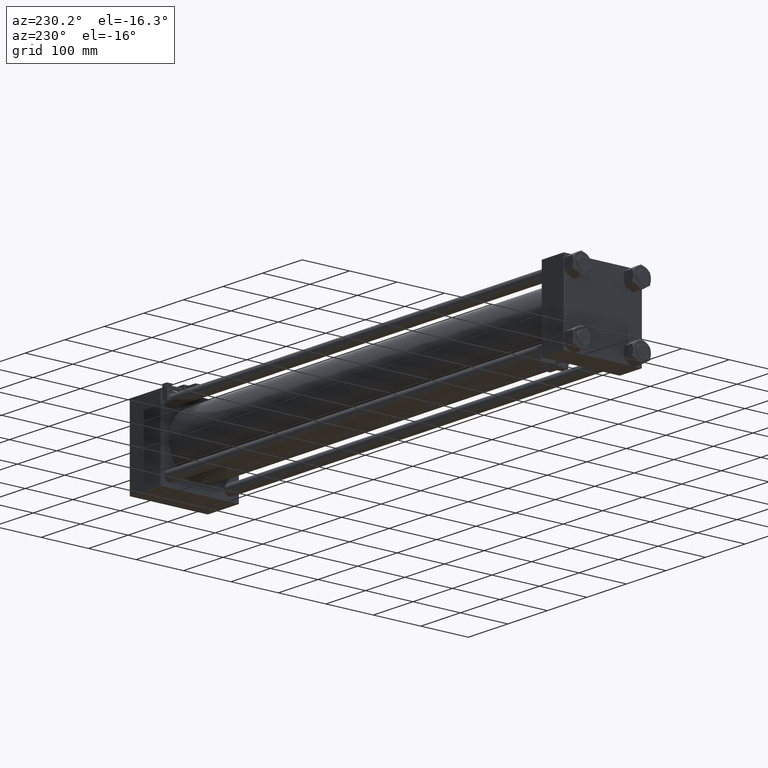
[diagram: clean part render]
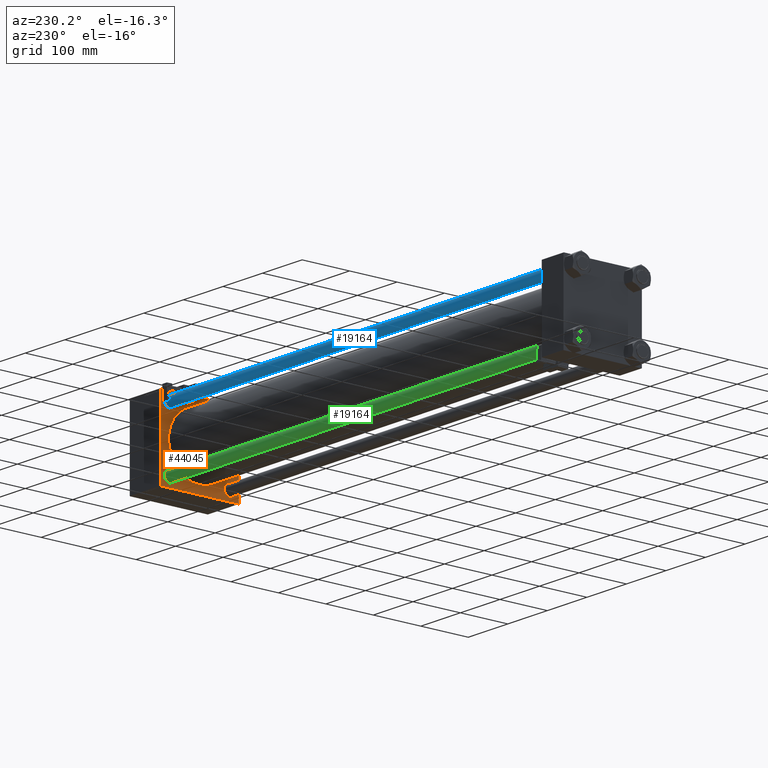
[diagram: same view with three faces highlighted in distinct colors, each labeled with its STEP entity id]
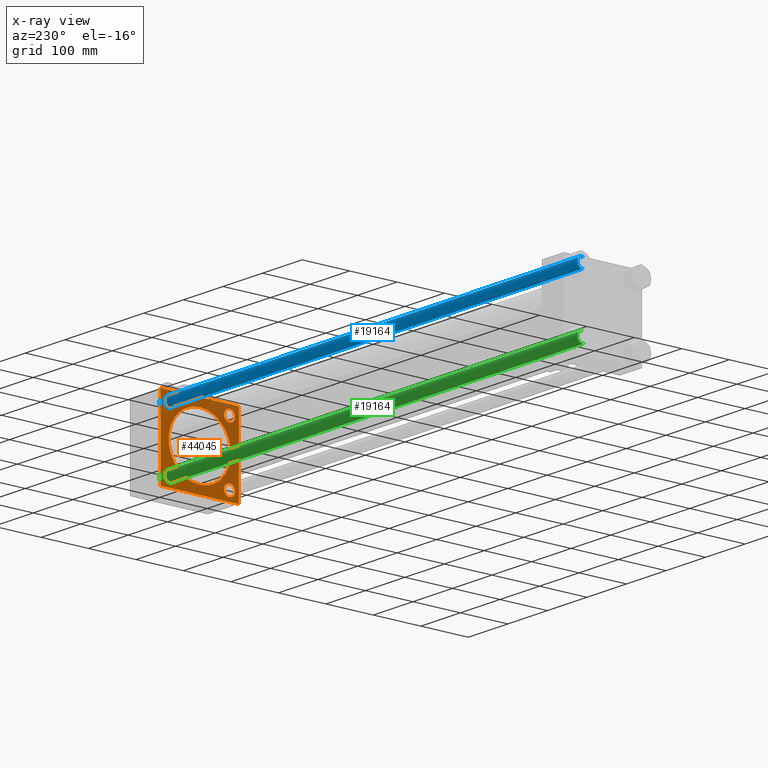
[diagram: x-ray of the same camera — body ghosted, the three highlighted faces saturated]
A machine part, auxiliary view with three faces highlighted in distinct colors.
The next image is the same camera in x-ray (body ghosted, the three faces saturated) — at least one of them is partly hidden behind the body in this view.
Their STEP definitions:

[orange] entity #44045 — the highlighted planar face has unit normal (-1, 0, 0).
#139 = CIRCLE ( 'NONE', #50592, 11.49999999999999645 ) ;
#295 = CARTESIAN_POINT ( 'NONE',  ( 1018.999999999999886, -82.49999999999997158, 81.99999999999991473 ) ) ;
#342 = PLANE ( 'NONE',  #44370 ) ;
#863 = DIRECTION ( 'NONE',  ( -1.000000000000000000, -0.000000000000000000, 0.000000000000000000 ) ) ;
#1254 = DIRECTION ( 'NONE',  ( 0.000000000000000000, 0.000000000000000000, -1.000000000000000000 ) ) ;
#2020 = VECTOR ( 'NONE', #50984, 1000.000000000000114 ) ;
#3006 = VERTEX_POINT ( 'NONE', #40238 ) ;
#3239 = EDGE_CURVE ( 'NONE', #42592, #21904, #24904, .T. ) ;
#3892 = CARTESIAN_POINT ( 'NONE',  ( 1018.999999999999886, 82.00000000000018474, -82.50000000000002842 ) ) ;
#4282 = CARTESIAN_POINT ( 'NONE',  ( 1018.999999999999886, -82.50000000000000000, -82.00000000000019895 ) ) ;
#4360 = EDGE_CURVE ( 'NONE', #17559, #33117, #139, .T. ) ;
#4467 = AXIS2_PLACEMENT_3D ( 'NONE', #18557, #35951, #15615 ) ;
#4563 = CARTESIAN_POINT ( 'NONE',  ( 1018.999999999999886, -2.602085213965210642E-15, 65.50000000000001421 ) ) ;
#4585 = VERTEX_POINT ( 'NONE', #46076 ) ;
#5184 = LINE ( 'NONE', #29023, #42066 ) ;
#5206 = CARTESIAN_POINT ( 'NONE',  ( 1018.999999999999886, 82.50000000000001421, -82.00000000000019895 ) ) ;
#5229 = VECTOR ( 'NONE', #1254, 1000.000000000000000 ) ;
#5259 = EDGE_CURVE ( 'NONE', #45990, #44289, #5184, .T. ) ;
#5487 = ORIENTED_EDGE ( 'NONE', *, *, #40924, .T. ) ;
#5939 = ORIENTED_EDGE ( 'NONE', *, *, #25645, .T. ) ;
#6864 = ORIENTED_EDGE ( 'NONE', *, *, #49932, .F. ) ;
#7556 = VERTEX_POINT ( 'NONE', #33530 ) ;
#7942 = VERTEX_POINT ( 'NONE', #4282 ) ;
#8108 = FACE_BOUND ( 'NONE', #50079, .T. ) ;
#8379 = VERTEX_POINT ( 'NONE', #5206 ) ;
#8421 = VECTOR ( 'NONE', #27707, 1000.000000000000000 ) ;
#8579 = DIRECTION ( 'NONE',  ( 1.000000000000000000, 0.000000000000000000, 0.000000000000000000 ) ) ;
#8905 = EDGE_CURVE ( 'NONE', #22885, #24319, #37941, .T. ) ;
#8910 = DIRECTION ( 'NONE',  ( 0.000000000000000000, 0.000000000000000000, 1.000000000000000000 ) ) ;
#9421 = CARTESIAN_POINT ( 'NONE',  ( 1018.999999999999886, 62.95000000000000284, -62.95000000000000284 ) ) ;
#9916 = ORIENTED_EDGE ( 'NONE', *, *, #13489, .F. ) ;
#10229 = EDGE_CURVE ( 'NONE', #49482, #3006, #50018, .T. ) ;
#10746 = CARTESIAN_POINT ( 'NONE',  ( 1018.999999999999886, 62.95000000000000284, -62.95000000000000284 ) ) ;
#11054 = ORIENTED_EDGE ( 'NONE', *, *, #3239, .T. ) ;
#11360 = ORIENTED_EDGE ( 'NONE', *, *, #4360, .T. ) ;
#11382 = LINE ( 'NONE', #40264, #8421 ) ;
#11636 = ORIENTED_EDGE ( 'NONE', *, *, #19890, .T. ) ;
#12124 = CARTESIAN_POINT ( 'NONE',  ( 1018.999999999999886, -82.24999999999897682, -82.25000000000125056 ) ) ;
#12489 = DIRECTION ( 'NONE',  ( 0.000000000000000000, 0.000000000000000000, 1.000000000000000000 ) ) ;
#12789 = VERTEX_POINT ( 'NONE', #3892 ) ;
#13339 = DIRECTION ( 'NONE',  ( 1.000000000000000000, 0.000000000000000000, -0.000000000000000000 ) ) ;
#13489 = EDGE_CURVE ( 'NONE', #49482, #44289, #19929, .T. ) ;
#13593 = DIRECTION ( 'NONE',  ( 0.000000000000000000, 0.7071067811865474617, -0.7071067811865474617 ) ) ;
#13844 = CARTESIAN_POINT ( 'NONE',  ( 1018.999999999999886, -62.94999999999998153, -51.45000000000002416 ) ) ;
#13984 = ORIENTED_EDGE ( 'NONE', *, *, #49264, .T. ) ;
#14033 = CARTESIAN_POINT ( 'NONE',  ( 1018.999999999999886, 82.25000000000009948, -82.25000000000009948 ) ) ;
#15615 = DIRECTION ( 'NONE',  ( 0.000000000000000000, 0.000000000000000000, 1.000000000000000000 ) ) ;
#15865 = CARTESIAN_POINT ( 'NONE',  ( 1018.999999999999886, -62.94999999999998153, -62.95000000000001705 ) ) ;
#15921 = DIRECTION ( 'NONE',  ( 0.000000000000000000, -1.000000000000000000, -1.682156097916904081E-16 ) ) ;
#16237 = CIRCLE ( 'NONE', #37641, 11.50000000000001066 ) ;
#16524 = DIRECTION ( 'NONE',  ( 1.000000000000000000, 0.000000000000000000, -0.000000000000000000 ) ) ;
#16950 = VERTEX_POINT ( 'NONE', #40624 ) ;
#17051 = EDGE_CURVE ( 'NONE', #3006, #8379, #38192, .T. ) ;
#17196 = FACE_BOUND ( 'NONE', #36131, .T. ) ;
#17200 = CARTESIAN_POINT ( 'NONE',  ( 1018.999999999999886, 62.95000000000000284, 51.45000000000000995 ) ) ;
#17500 = CIRCLE ( 'NONE', #50876, 11.49999999999999645 ) ;
#17559 = VERTEX_POINT ( 'NONE', #30017 ) ;
#18341 = EDGE_CURVE ( 'NONE', #16950, #7942, #32457, .T. ) ;
#18557 = CARTESIAN_POINT ( 'NONE',  ( 1018.999999999999886, -62.94999999999998153, 62.95000000000001705 ) ) ;
#19345 = ORIENTED_EDGE ( 'NONE', *, *, #8905, .T. ) ;
#19407 = ORIENTED_EDGE ( 'NONE', *, *, #5259, .T. ) ;
#19657 = EDGE_CURVE ( 'NONE', #49703, #4585, #39529, .T. ) ;
#19836 = CIRCLE ( 'NONE', #21560, 11.49999999999999645 ) ;
#19890 = EDGE_CURVE ( 'NONE', #33117, #17559, #19836, .T. ) ;
#19929 = LINE ( 'NONE', #40805, #49095 ) ;
#20412 = FACE_BOUND ( 'NONE', #22191, .T. ) ;
#21410 = CARTESIAN_POINT ( 'NONE',  ( 1018.999999999999886, 62.95000000000000284, -74.45000000000000284 ) ) ;
#21560 = AXIS2_PLACEMENT_3D ( 'NONE', #43867, #16524, #24561 ) ;
#21904 = VERTEX_POINT ( 'NONE', #21410 ) ;
#21971 = CIRCLE ( 'NONE', #51913, 11.49999999999999645 ) ;
#22111 = ORIENTED_EDGE ( 'NONE', *, *, #30961, .T. ) ;
#22191 = EDGE_LOOP ( 'NONE', ( #22111, #19345 ) ) ;
#22871 = EDGE_CURVE ( 'NONE', #8379, #12789, #33856, .T. ) ;
#22885 = VERTEX_POINT ( 'NONE', #42159 ) ;
#24085 = VECTOR ( 'NONE', #48290, 1000.000000000000000 ) ;
#24319 = VERTEX_POINT ( 'NONE', #4563 ) ;
#24417 = CARTESIAN_POINT ( 'NONE',  ( 1018.999999999999886, 62.95000000000000284, -51.45000000000000995 ) ) ;
#24561 = DIRECTION ( 'NONE',  ( 0.000000000000000000, 0.000000000000000000, 1.000000000000000000 ) ) ;
#24904 = CIRCLE ( 'NONE', #47119, 11.49999999999999645 ) ;
#25178 = DIRECTION ( 'NONE',  ( 0.000000000000000000, 0.000000000000000000, -1.000000000000000000 ) ) ;
#25645 = EDGE_CURVE ( 'NONE', #7556, #38561, #17500, .T. ) ;
#26826 = EDGE_LOOP ( 'NONE', ( #5487, #50331, #6864, #19407, #9916, #38833, #29539, #51167 ) ) ;
#27373 = DIRECTION ( 'NONE',  ( 0.000000000000000000, 0.000000000000000000, 1.000000000000000000 ) ) ;
#27497 = VECTOR ( 'NONE', #47829, 1000.000000000000000 ) ;
#27707 = DIRECTION ( 'NONE',  ( 0.000000000000000000, -1.000000000000000000, 0.000000000000000000 ) ) ;
#27855 = AXIS2_PLACEMENT_3D ( 'NONE', #28258, #40584, #48873 ) ;
#27860 = DIRECTION ( 'NONE',  ( 1.000000000000000000, 0.000000000000000000, -0.000000000000000000 ) ) ;
#27887 = DIRECTION ( 'NONE',  ( 1.000000000000000000, 0.000000000000000000, -0.000000000000000000 ) ) ;
#28128 = CARTESIAN_POINT ( 'NONE',  ( 1018.999999999999886, -81.99999999999990052, 82.49999999999997158 ) ) ;
#28258 = CARTESIAN_POINT ( 'NONE',  ( 1018.999999999999886, -2.602085213965210642E-15, 0.000000000000000000 ) ) ;
#28978 = FACE_BOUND ( 'NONE', #46056, .T. ) ;
#29023 = CARTESIAN_POINT ( 'NONE',  ( 1018.999999999999886, -82.24999999999880629, 82.25000000000108002 ) ) ;
#29181 = CARTESIAN_POINT ( 'NONE',  ( 1018.999999999999886, -2.602085213965210642E-15, 0.000000000000000000 ) ) ;
#29539 = ORIENTED_EDGE ( 'NONE', *, *, #17051, .T. ) ;
#30017 = CARTESIAN_POINT ( 'NONE',  ( 1018.999999999999886, -62.94999999999998153, -74.45000000000001705 ) ) ;
#30961 = EDGE_CURVE ( 'NONE', #24319, #22885, #50952, .T. ) ;
#31114 = AXIS2_PLACEMENT_3D ( 'NONE', #29181, #8579, #25178 ) ;
#31204 = ORIENTED_EDGE ( 'NONE', *, *, #34119, .T. ) ;
#31504 = CARTESIAN_POINT ( 'NONE',  ( 1018.999999999999886, -82.49999999999997158, 82.49999999999997158 ) ) ;
#32457 = LINE ( 'NONE', #12124, #24085 ) ;
#32835 = CARTESIAN_POINT ( 'NONE',  ( 1018.999999999999886, 62.95000000000000284, 62.95000000000000284 ) ) ;
#33116 = CARTESIAN_POINT ( 'NONE',  ( 1018.999999999999886, 82.50000000000001421, 82.50000000000000000 ) ) ;
#33117 = VERTEX_POINT ( 'NONE', #13844 ) ;
#33128 = CARTESIAN_POINT ( 'NONE',  ( 1018.999999999999886, -62.94999999999998153, 51.45000000000000995 ) ) ;
#33432 = AXIS2_PLACEMENT_3D ( 'NONE', #10746, #27860, #36153 ) ;
#33530 = CARTESIAN_POINT ( 'NONE',  ( 1018.999999999999886, 62.95000000000000284, 74.45000000000000284 ) ) ;
#33856 = LINE ( 'NONE', #14033, #2020 ) ;
#34119 = EDGE_CURVE ( 'NONE', #38561, #7556, #21971, .T. ) ;
#34741 = CARTESIAN_POINT ( 'NONE',  ( 1018.999999999999886, -62.94999999999998153, 62.95000000000001705 ) ) ;
#34842 = DIRECTION ( 'NONE',  ( 0.000000000000000000, 0.000000000000000000, 1.000000000000000000 ) ) ;
#35951 = DIRECTION ( 'NONE',  ( 1.000000000000000000, 0.000000000000000000, -0.000000000000000000 ) ) ;
#36131 = EDGE_LOOP ( 'NONE', ( #5939, #31204 ) ) ;
#36153 = DIRECTION ( 'NONE',  ( 0.000000000000000000, 0.000000000000000000, 1.000000000000000000 ) ) ;
#36295 = VECTOR ( 'NONE', #13593, 1000.000000000000114 ) ;
#37009 = FACE_BOUND ( 'NONE', #52867, .T. ) ;
#37285 = CARTESIAN_POINT ( 'NONE',  ( 1018.999999999999886, 0.000000000000000000, 0.000000000000000000 ) ) ;
#37641 = AXIS2_PLACEMENT_3D ( 'NONE', #34741, #13339, #46257 ) ;
#37941 = CIRCLE ( 'NONE', #31114, 65.50000000000001421 ) ;
#38192 = LINE ( 'NONE', #33116, #5229 ) ;
#38561 = VERTEX_POINT ( 'NONE', #17200 ) ;
#38833 = ORIENTED_EDGE ( 'NONE', *, *, #10229, .T. ) ;
#38892 = ORIENTED_EDGE ( 'NONE', *, *, #46434, .T. ) ;
#39529 = CIRCLE ( 'NONE', #4467, 11.50000000000001066 ) ;
#40193 = CARTESIAN_POINT ( 'NONE',  ( 1018.999999999999886, 62.95000000000000284, 62.95000000000000284 ) ) ;
#40238 = CARTESIAN_POINT ( 'NONE',  ( 1018.999999999999886, 82.50000000000001421, 81.99999999999994316 ) ) ;
#40264 = CARTESIAN_POINT ( 'NONE',  ( 1018.999999999999886, 82.50000000000001421, -82.50000000000002842 ) ) ;
#40508 = FACE_OUTER_BOUND ( 'NONE', #26826, .T. ) ;
#40584 = DIRECTION ( 'NONE',  ( 1.000000000000000000, 0.000000000000000000, 0.000000000000000000 ) ) ;
#40624 = CARTESIAN_POINT ( 'NONE',  ( 1018.999999999999886, -82.00000000000015632, -82.50000000000002842 ) ) ;
#40805 = CARTESIAN_POINT ( 'NONE',  ( 1018.999999999999886, 82.50000000000001421, 82.50000000000000000 ) ) ;
#40924 = EDGE_CURVE ( 'NONE', #12789, #16950, #11382, .T. ) ;
#41752 = CARTESIAN_POINT ( 'NONE',  ( 1018.999999999999886, 81.99999999999995737, 82.50000000000000000 ) ) ;
#42066 = VECTOR ( 'NONE', #45888, 1000.000000000000114 ) ;
#42159 = CARTESIAN_POINT ( 'NONE',  ( 1018.999999999999886, 5.419351320449954973E-15, -65.50000000000001421 ) ) ;
#42592 = VERTEX_POINT ( 'NONE', #24417 ) ;
#43867 = CARTESIAN_POINT ( 'NONE',  ( 1018.999999999999886, -62.94999999999998153, -62.95000000000001705 ) ) ;
#44045 = ADVANCED_FACE ( 'NONE', ( #28978, #17196, #37009, #8108, #20412, #40508 ), #342, .T. ) ;
#44289 = VERTEX_POINT ( 'NONE', #28128 ) ;
#44370 = AXIS2_PLACEMENT_3D ( 'NONE', #37285, #863, #8910 ) ;
#45888 = DIRECTION ( 'NONE',  ( -0.000000000000000000, 0.7071067811865573427, 0.7071067811865376918 ) ) ;
#45990 = VERTEX_POINT ( 'NONE', #295 ) ;
#46056 = EDGE_LOOP ( 'NONE', ( #38892, #52850 ) ) ;
#46076 = CARTESIAN_POINT ( 'NONE',  ( 1018.999999999999886, -62.94999999999998153, 74.45000000000003126 ) ) ;
#46257 = DIRECTION ( 'NONE',  ( 0.000000000000000000, 0.000000000000000000, 1.000000000000000000 ) ) ;
#46434 = EDGE_CURVE ( 'NONE', #4585, #49703, #16237, .T. ) ;
#46788 = CARTESIAN_POINT ( 'NONE',  ( 1018.999999999999886, 82.24999999999997158, 82.24999999999997158 ) ) ;
#47119 = AXIS2_PLACEMENT_3D ( 'NONE', #9421, #50384, #34842 ) ;
#47829 = DIRECTION ( 'NONE',  ( 0.000000000000000000, -1.682156097916903834E-16, -1.000000000000000000 ) ) ;
#48290 = DIRECTION ( 'NONE',  ( 0.000000000000000000, -0.7071067811865573427, 0.7071067811865378028 ) ) ;
#48873 = DIRECTION ( 'NONE',  ( 0.000000000000000000, 0.000000000000000000, -1.000000000000000000 ) ) ;
#49095 = VECTOR ( 'NONE', #15921, 1000.000000000000000 ) ;
#49170 = DIRECTION ( 'NONE',  ( 1.000000000000000000, 0.000000000000000000, -0.000000000000000000 ) ) ;
#49264 = EDGE_CURVE ( 'NONE', #21904, #42592, #49687, .T. ) ;
#49482 = VERTEX_POINT ( 'NONE', #41752 ) ;
#49687 = CIRCLE ( 'NONE', #33432, 11.49999999999999645 ) ;
#49703 = VERTEX_POINT ( 'NONE', #33128 ) ;
#49932 = EDGE_CURVE ( 'NONE', #45990, #7942, #51859, .T. ) ;
#50018 = LINE ( 'NONE', #46788, #36295 ) ;
#50079 = EDGE_LOOP ( 'NONE', ( #11636, #11360 ) ) ;
#50331 = ORIENTED_EDGE ( 'NONE', *, *, #18341, .T. ) ;
#50384 = DIRECTION ( 'NONE',  ( 1.000000000000000000, 0.000000000000000000, -0.000000000000000000 ) ) ;
#50592 = AXIS2_PLACEMENT_3D ( 'NONE', #15865, #51771, #52282 ) ;
#50876 = AXIS2_PLACEMENT_3D ( 'NONE', #32835, #49170, #12489 ) ;
#50952 = CIRCLE ( 'NONE', #27855, 65.50000000000001421 ) ;
#50984 = DIRECTION ( 'NONE',  ( -0.000000000000000000, -0.7071067811865474617, -0.7071067811865474617 ) ) ;
#51167 = ORIENTED_EDGE ( 'NONE', *, *, #22871, .T. ) ;
#51771 = DIRECTION ( 'NONE',  ( 1.000000000000000000, 0.000000000000000000, -0.000000000000000000 ) ) ;
#51859 = LINE ( 'NONE', #31504, #27497 ) ;
#51913 = AXIS2_PLACEMENT_3D ( 'NONE', #40193, #27887, #27373 ) ;
#52282 = DIRECTION ( 'NONE',  ( 0.000000000000000000, 0.000000000000000000, 1.000000000000000000 ) ) ;
#52850 = ORIENTED_EDGE ( 'NONE', *, *, #19657, .T. ) ;
#52867 = EDGE_LOOP ( 'NONE', ( #11054, #13984 ) ) ;

[blue] entity #19164 — the highlighted cylindrical surface (edge-blend (fillet) strip) has radius 11 mm, axis along (-1, 0, 0).
#658 = DIRECTION ( 'NONE',  ( -0.000000000000000000, -0.000000000000000000, -1.000000000000000000 ) ) ;
#1072 = VECTOR ( 'NONE', #658, 1000.000000000000000 ) ;
#1361 = VERTEX_POINT ( 'NONE', #10932 ) ;
#3089 = VERTEX_POINT ( 'NONE', #40767 ) ;
#3395 = ORIENTED_EDGE ( 'NONE', *, *, #32464, .T. ) ;
#4142 = CARTESIAN_POINT ( 'NONE',  ( -11.00000000000000000, 0.000000000000000000, 1059.000000000000000 ) ) ;
#4160 = CARTESIAN_POINT ( 'NONE',  ( 0.000000000000000000, 0.000000000000000000, 1059.000000000000000 ) ) ;
#6276 = VERTEX_POINT ( 'NONE', #29892 ) ;
#7747 = CARTESIAN_POINT ( 'NONE',  ( 0.000000000000000000, 0.000000000000000000, 0.4999999999999449329 ) ) ;
#10673 = EDGE_CURVE ( 'NONE', #6276, #24404, #14053, .T. ) ;
#10812 = CARTESIAN_POINT ( 'NONE',  ( 11.00000000000000000, 1.347111479062088405E-15, 1059.000000000000000 ) ) ;
#10932 = CARTESIAN_POINT ( 'NONE',  ( 11.00000000000000000, 1.347111479062088405E-15, 1058.500000000000227 ) ) ;
#11258 = DIRECTION ( 'NONE',  ( 1.000000000000000000, 0.000000000000000000, 0.000000000000000000 ) ) ;
#11509 = AXIS2_PLACEMENT_3D ( 'NONE', #7747, #32373, #11258 ) ;
#12464 = DIRECTION ( 'NONE',  ( -1.000000000000000000, 0.000000000000000000, 0.000000000000000000 ) ) ;
#14053 = CIRCLE ( 'NONE', #11509, 11.00000000000000000 ) ;
#15620 = DIRECTION ( 'NONE',  ( -0.000000000000000000, -0.000000000000000000, -1.000000000000000000 ) ) ;
#19164 = ADVANCED_FACE ( 'NONE', ( #40322 ), #45385, .T. ) ;
#20375 = EDGE_CURVE ( 'NONE', #3089, #24404, #32790, .T. ) ;
#22189 = EDGE_CURVE ( 'NONE', #1361, #6276, #52297, .T. ) ;
#23159 = DIRECTION ( 'NONE',  ( 1.000000000000000000, 0.000000000000000000, 0.000000000000000000 ) ) ;
#24404 = VERTEX_POINT ( 'NONE', #37749 ) ;
#27020 = CIRCLE ( 'NONE', #47546, 11.00000000000000000 ) ;
#29530 = ORIENTED_EDGE ( 'NONE', *, *, #22189, .T. ) ;
#29892 = CARTESIAN_POINT ( 'NONE',  ( 11.00000000000000000, 1.347111479062088405E-15, 0.4999999999999449329 ) ) ;
#32373 = DIRECTION ( 'NONE',  ( -0.000000000000000000, -0.000000000000000000, 1.000000000000000000 ) ) ;
#32464 = EDGE_CURVE ( 'NONE', #3089, #1361, #27020, .T. ) ;
#32790 = LINE ( 'NONE', #4142, #1072 ) ;
#36714 = ORIENTED_EDGE ( 'NONE', *, *, #20375, .F. ) ;
#36820 = DIRECTION ( 'NONE',  ( -0.000000000000000000, -0.000000000000000000, -1.000000000000000000 ) ) ;
#37749 = CARTESIAN_POINT ( 'NONE',  ( -11.00000000000000000, 0.000000000000000000, 0.4999999999999449329 ) ) ;
#39216 = CARTESIAN_POINT ( 'NONE',  ( 0.000000000000000000, 0.000000000000000000, 1058.500000000000227 ) ) ;
#40322 = FACE_OUTER_BOUND ( 'NONE', #47687, .T. ) ;
#40767 = CARTESIAN_POINT ( 'NONE',  ( -11.00000000000000000, 0.000000000000000000, 1058.500000000000227 ) ) ;
#43224 = ORIENTED_EDGE ( 'NONE', *, *, #10673, .T. ) ;
#43889 = VECTOR ( 'NONE', #15620, 1000.000000000000000 ) ;
#45385 = CYLINDRICAL_SURFACE ( 'NONE', #47209, 11.00000000000000000 ) ;
#47209 = AXIS2_PLACEMENT_3D ( 'NONE', #4160, #36820, #12464 ) ;
#47546 = AXIS2_PLACEMENT_3D ( 'NONE', #39216, #48061, #23159 ) ;
#47687 = EDGE_LOOP ( 'NONE', ( #3395, #29530, #43224, #36714 ) ) ;
#48061 = DIRECTION ( 'NONE',  ( 0.000000000000000000, 0.000000000000000000, -1.000000000000000000 ) ) ;
#52297 = LINE ( 'NONE', #10812, #43889 ) ;

[green] entity #19164 — the highlighted cylindrical surface (edge-blend (fillet) strip) has radius 11 mm, axis along (1, -0, 0).
#658 = DIRECTION ( 'NONE',  ( -0.000000000000000000, -0.000000000000000000, -1.000000000000000000 ) ) ;
#1072 = VECTOR ( 'NONE', #658, 1000.000000000000000 ) ;
#1361 = VERTEX_POINT ( 'NONE', #10932 ) ;
#3089 = VERTEX_POINT ( 'NONE', #40767 ) ;
#3395 = ORIENTED_EDGE ( 'NONE', *, *, #32464, .T. ) ;
#4142 = CARTESIAN_POINT ( 'NONE',  ( -11.00000000000000000, 0.000000000000000000, 1059.000000000000000 ) ) ;
#4160 = CARTESIAN_POINT ( 'NONE',  ( 0.000000000000000000, 0.000000000000000000, 1059.000000000000000 ) ) ;
#6276 = VERTEX_POINT ( 'NONE', #29892 ) ;
#7747 = CARTESIAN_POINT ( 'NONE',  ( 0.000000000000000000, 0.000000000000000000, 0.4999999999999449329 ) ) ;
#10673 = EDGE_CURVE ( 'NONE', #6276, #24404, #14053, .T. ) ;
#10812 = CARTESIAN_POINT ( 'NONE',  ( 11.00000000000000000, 1.347111479062088405E-15, 1059.000000000000000 ) ) ;
#10932 = CARTESIAN_POINT ( 'NONE',  ( 11.00000000000000000, 1.347111479062088405E-15, 1058.500000000000227 ) ) ;
#11258 = DIRECTION ( 'NONE',  ( 1.000000000000000000, 0.000000000000000000, 0.000000000000000000 ) ) ;
#11509 = AXIS2_PLACEMENT_3D ( 'NONE', #7747, #32373, #11258 ) ;
#12464 = DIRECTION ( 'NONE',  ( -1.000000000000000000, 0.000000000000000000, 0.000000000000000000 ) ) ;
#14053 = CIRCLE ( 'NONE', #11509, 11.00000000000000000 ) ;
#15620 = DIRECTION ( 'NONE',  ( -0.000000000000000000, -0.000000000000000000, -1.000000000000000000 ) ) ;
#19164 = ADVANCED_FACE ( 'NONE', ( #40322 ), #45385, .T. ) ;
#20375 = EDGE_CURVE ( 'NONE', #3089, #24404, #32790, .T. ) ;
#22189 = EDGE_CURVE ( 'NONE', #1361, #6276, #52297, .T. ) ;
#23159 = DIRECTION ( 'NONE',  ( 1.000000000000000000, 0.000000000000000000, 0.000000000000000000 ) ) ;
#24404 = VERTEX_POINT ( 'NONE', #37749 ) ;
#27020 = CIRCLE ( 'NONE', #47546, 11.00000000000000000 ) ;
#29530 = ORIENTED_EDGE ( 'NONE', *, *, #22189, .T. ) ;
#29892 = CARTESIAN_POINT ( 'NONE',  ( 11.00000000000000000, 1.347111479062088405E-15, 0.4999999999999449329 ) ) ;
#32373 = DIRECTION ( 'NONE',  ( -0.000000000000000000, -0.000000000000000000, 1.000000000000000000 ) ) ;
#32464 = EDGE_CURVE ( 'NONE', #3089, #1361, #27020, .T. ) ;
#32790 = LINE ( 'NONE', #4142, #1072 ) ;
#36714 = ORIENTED_EDGE ( 'NONE', *, *, #20375, .F. ) ;
#36820 = DIRECTION ( 'NONE',  ( -0.000000000000000000, -0.000000000000000000, -1.000000000000000000 ) ) ;
#37749 = CARTESIAN_POINT ( 'NONE',  ( -11.00000000000000000, 0.000000000000000000, 0.4999999999999449329 ) ) ;
#39216 = CARTESIAN_POINT ( 'NONE',  ( 0.000000000000000000, 0.000000000000000000, 1058.500000000000227 ) ) ;
#40322 = FACE_OUTER_BOUND ( 'NONE', #47687, .T. ) ;
#40767 = CARTESIAN_POINT ( 'NONE',  ( -11.00000000000000000, 0.000000000000000000, 1058.500000000000227 ) ) ;
#43224 = ORIENTED_EDGE ( 'NONE', *, *, #10673, .T. ) ;
#43889 = VECTOR ( 'NONE', #15620, 1000.000000000000000 ) ;
#45385 = CYLINDRICAL_SURFACE ( 'NONE', #47209, 11.00000000000000000 ) ;
#47209 = AXIS2_PLACEMENT_3D ( 'NONE', #4160, #36820, #12464 ) ;
#47546 = AXIS2_PLACEMENT_3D ( 'NONE', #39216, #48061, #23159 ) ;
#47687 = EDGE_LOOP ( 'NONE', ( #3395, #29530, #43224, #36714 ) ) ;
#48061 = DIRECTION ( 'NONE',  ( 0.000000000000000000, 0.000000000000000000, -1.000000000000000000 ) ) ;
#52297 = LINE ( 'NONE', #10812, #43889 ) ;